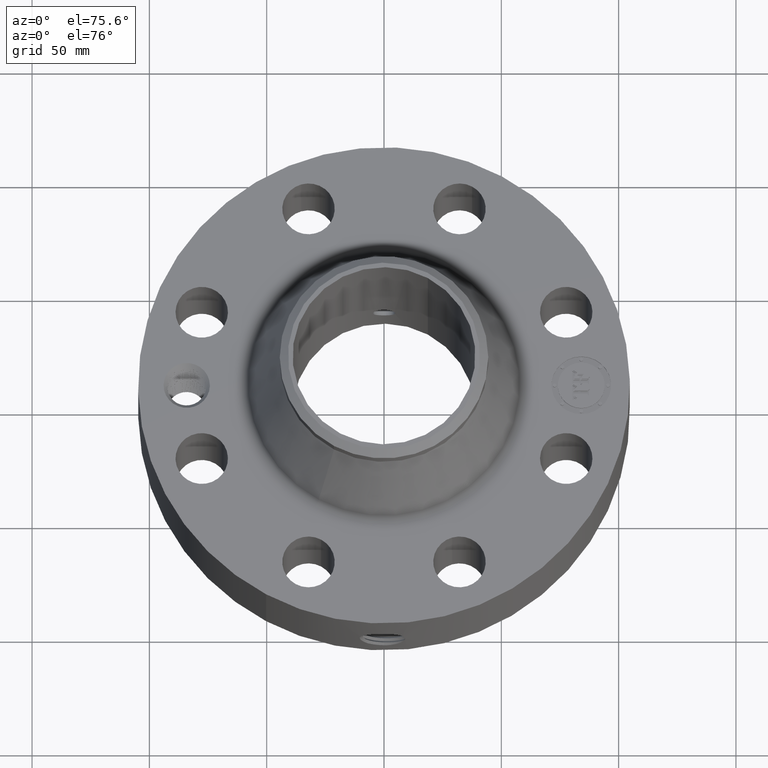
[diagram: clean part render]
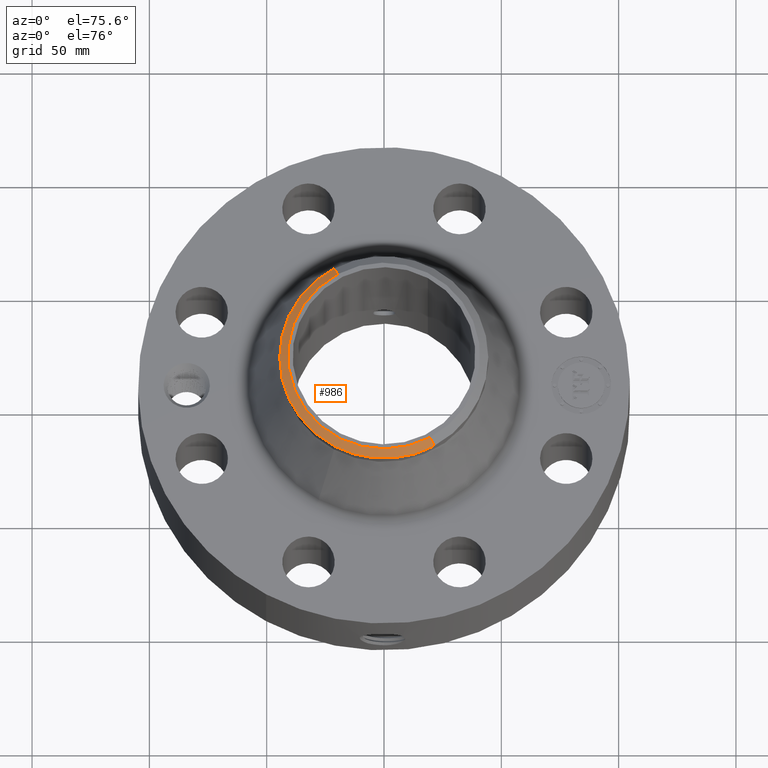
[diagram: same view with one face highlighted and labeled with its STEP entity id]
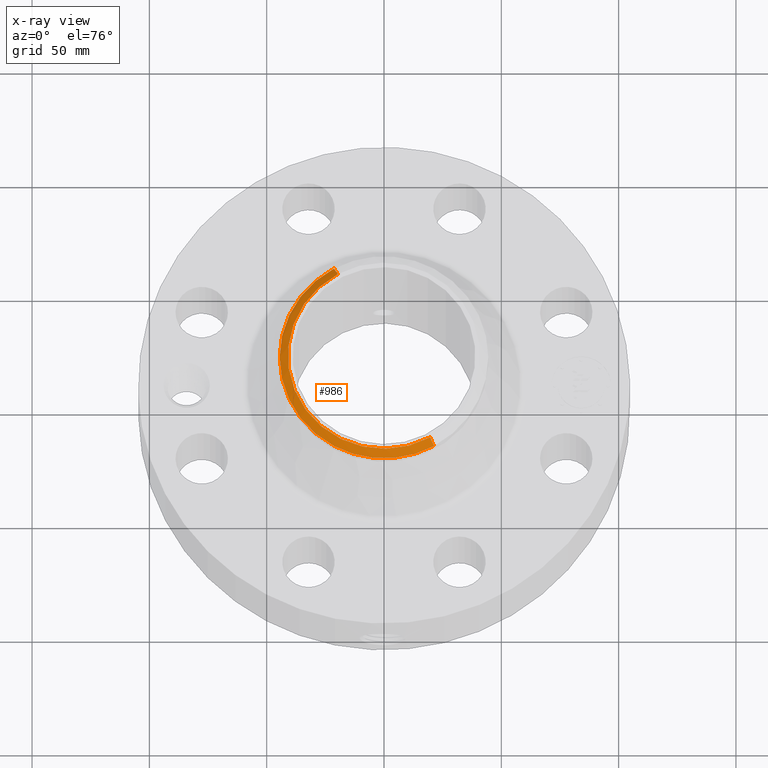
[diagram: x-ray of the same camera — body ghosted, the highlighted face saturated]
A machine part, auxiliary view. The second image highlights one B-rep face of the part: STEP entity #986.
The next image is the same camera in x-ray: the body ghosted, the highlighted face saturated — about 0% of this face is hidden behind the body in this view.
In plain terms, the highlighted conical surface has half-angle 52.5 deg.
Its self-contained STEP definition (entity closure, byte-faithful):
#524=AXIS2_PLACEMENT_3D('Circle Axis2P3D',#522,#523,$) ;
#951=AXIS2_PLACEMENT_3D('Cone Axis2P3D',#948,#949,#950) ;
#969=AXIS2_PLACEMENT_3D('Circle Axis2P3D',#967,#968,$) ;
#976=AXIS2_PLACEMENT_3D('Circle Axis2P3D',#974,#975,$) ;
#517=CARTESIAN_POINT('Vertex',(0.773188818632,-1.41531263907,3.81200000002)) ;
#519=CARTESIAN_POINT('Vertex',(-0.773188818632,1.41531263907,3.81200000002)) ;
#522=CARTESIAN_POINT('Axis2P3D Location',(0.,0.,3.81200000002)) ;
#948=CARTESIAN_POINT('Axis2P3D Location',(0.,0.,3.81200000002)) ;
#953=CARTESIAN_POINT('Line Origine',(0.806091755596,-1.47554106119,3.75933840925)) ;
#957=CARTESIAN_POINT('Vertex',(0.838994692561,-1.53576948331,3.70667681848)) ;
#960=CARTESIAN_POINT('Line Origine',(-0.806091755596,1.47554106119,3.75933840925)) ;
#964=CARTESIAN_POINT('Vertex',(-0.838994692561,1.53576948331,3.70667681848)) ;
#967=CARTESIAN_POINT('Axis2P3D Location',(0.,0.,3.70667681848)) ;
#971=CARTESIAN_POINT('Vertex',(-0.838994692561,-1.53576948331,3.70667681848)) ;
#974=CARTESIAN_POINT('Axis2P3D Location',(0.,0.,3.70667681848)) ;
#523=DIRECTION('Axis2P3D Direction',(0.,0.,-0.0393700787402)) ;
#949=DIRECTION('Axis2P3D Direction',(-0.,-0.,-0.0393700787402)) ;
#950=DIRECTION('Axis2P3D XDirection',(-0.0188750212049,0.0345504945626,0.)) ;
#954=DIRECTION('Vector Direction',(0.014974561121,-0.02741075027,-0.023966985394)) ;
#961=DIRECTION('Vector Direction',(-0.014974561121,0.02741075027,-0.023966985394)) ;
#968=DIRECTION('Axis2P3D Direction',(0.,0.,-0.0393700787402)) ;
#975=DIRECTION('Axis2P3D Direction',(0.,0.,-0.0393700787402)) ;
#955=VECTOR('Line Direction',#954,0.0393700787402) ;
#962=VECTOR('Line Direction',#961,0.0393700787402) ;
#980=ORIENTED_EDGE('',*,*,#959,.F.) ;
#981=ORIENTED_EDGE('',*,*,#526,.F.) ;
#982=ORIENTED_EDGE('',*,*,#966,.T.) ;
#983=ORIENTED_EDGE('',*,*,#973,.T.) ;
#984=ORIENTED_EDGE('',*,*,#978,.F.) ;
#986=ADVANCED_FACE('PartBody',(#985),#952,.T.) ;
#525=CIRCLE('generated circle',#524,1.61274015749) ;
#970=CIRCLE('generated circle',#969,1.75000000001) ;
#977=CIRCLE('generated circle',#976,1.75000000001) ;
#952=CONICAL_SURFACE('Cone',#951,1.61274015749,0.916297857297) ;
#526=EDGE_CURVE('',#520,#518,#525,.F.) ;
#959=EDGE_CURVE('',#518,#958,#956,.T.) ;
#966=EDGE_CURVE('',#520,#965,#963,.T.) ;
#973=EDGE_CURVE('',#965,#972,#970,.F.) ;
#978=EDGE_CURVE('',#958,#972,#977,.T.) ;
#979=EDGE_LOOP('',(#980,#981,#982,#983,#984)) ;
#985=FACE_OUTER_BOUND('',#979,.T.) ;
#956=LINE('Line',#953,#955) ;
#963=LINE('Line',#960,#962) ;
#518=VERTEX_POINT('',#517) ;
#520=VERTEX_POINT('',#519) ;
#958=VERTEX_POINT('',#957) ;
#965=VERTEX_POINT('',#964) ;
#972=VERTEX_POINT('',#971) ;